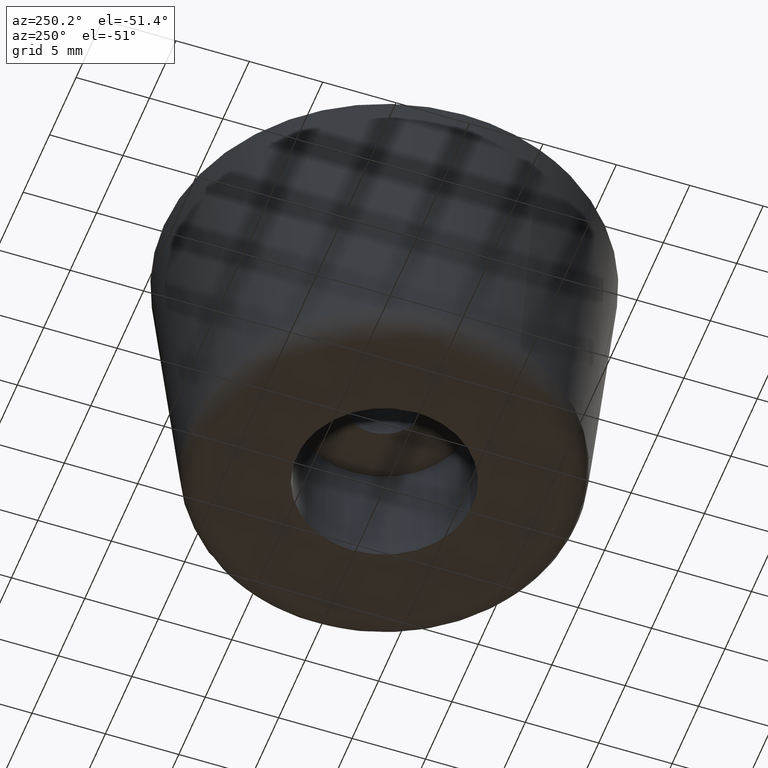
[diagram: clean part render]
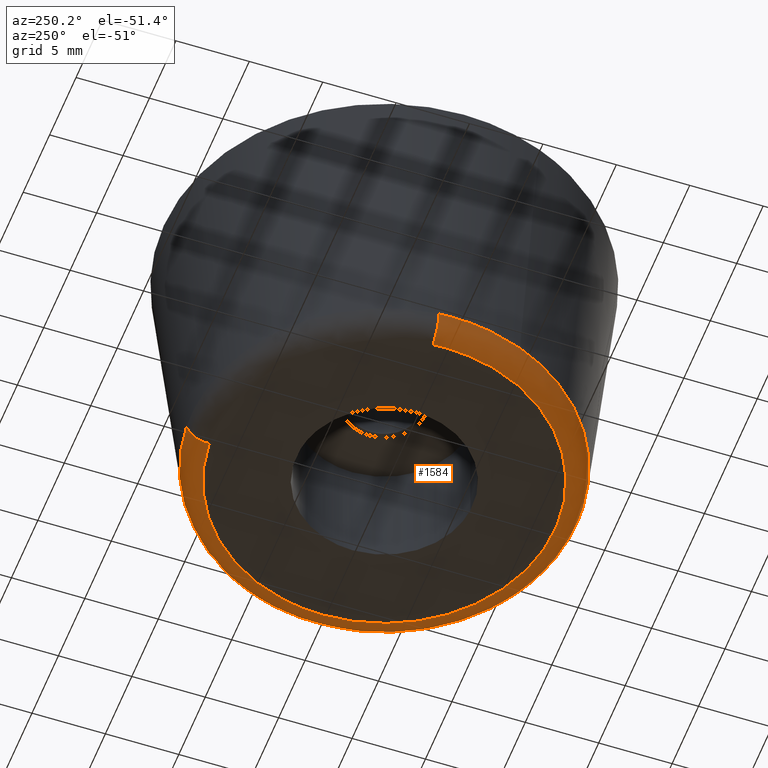
[diagram: same view with one face highlighted and labeled with its STEP entity id]
A machine part, auxiliary view. The second image highlights one B-rep face of the part: STEP entity #1584.
In plain terms, the highlighted face is a freeform B-spline surface patch.
Its self-contained STEP definition (entity closure, byte-faithful):
#705=CARTESIAN_POINT('',(1.030555621959290,-13.094583491800741,1.350742231963600));
#706=VERTEX_POINT('',#705);
#707=CARTESIAN_POINT('',(-12.213839723886680,-4.832419833118689,1.350742433918875));
#708=VERTEX_POINT('',#707);
#709=CARTESIAN_POINT('',(1.030555621959290,-13.094583491800739,1.350742231963600));
#710=CARTESIAN_POINT('',(0.516073231781699,-13.135073728872834,1.350742237333666));
#711=CARTESIAN_POINT('',(-7.493435E-009,-13.135073733965189,1.350742242998451));
#712=CARTESIAN_POINT('',(-8.928885143544781,-13.135073822070973,1.350742341008227));
#713=CARTESIAN_POINT('',(-12.213839723886680,-4.832419833118689,1.350742433918874));
#721=(BOUNDED_CURVE()B_SPLINE_CURVE(2,(#709,#710,#711,#712,#713),.UNSPECIFIED.,.F.,.U.)B_SPLINE_CURVE_WITH_KNOTS((3,2,3),(0.736331436581265,0.750000000000000,0.937532615029448),.UNSPECIFIED.)CURVE()GEOMETRIC_REPRESENTATION_ITEM()RATIONAL_B_SPLINE_CURVE((0.969723639886132,0.983986281854923,1.0,0.780291875006084,0.890203263798775))REPRESENTATION_ITEM(''));
#722=EDGE_CURVE('',#706,#708,#721,.T.);
#782=CARTESIAN_POINT('',(-13.135073999999980,0.0,1.350745000000000));
#783=VERTEX_POINT('',#782);
#784=CARTESIAN_POINT('',(-12.213839723886680,-4.832419833118689,1.350742433918874));
#785=CARTESIAN_POINT('',(-13.135073880694025,-2.504020181869384,1.350743716959438));
#786=CARTESIAN_POINT('',(-13.135073999999980,0.0,1.350745000000000));
#794=(BOUNDED_CURVE()B_SPLINE_CURVE(2,(#784,#785,#786),.UNSPECIFIED.,.F.,.U.)B_SPLINE_CURVE_WITH_KNOTS((3,3),(0.937532615029448,1.0),.UNSPECIFIED.)CURVE()GEOMETRIC_REPRESENTATION_ITEM()RATIONAL_B_SPLINE_CURVE((0.890203263798775,0.926814906180464,1.0))REPRESENTATION_ITEM(''));
#795=EDGE_CURVE('',#708,#783,#794,.T.);
#844=CARTESIAN_POINT('',(13.135073999999980,0.0,1.350745000000000));
#845=VERTEX_POINT('',#844);
#846=CARTESIAN_POINT('',(13.135073999999980,0.0,1.350745000000000));
#847=CARTESIAN_POINT('',(13.135073989141043,-12.141947033812311,1.350743615981800));
#848=CARTESIAN_POINT('',(1.030555621959290,-13.094583491800739,1.350742231963600));
#856=(BOUNDED_CURVE()B_SPLINE_CURVE(2,(#846,#847,#848),.UNSPECIFIED.,.F.,.U.)B_SPLINE_CURVE_WITH_KNOTS((3,3),(0.500000000000000,0.736331436581265),.UNSPECIFIED.)CURVE()GEOMETRIC_REPRESENTATION_ITEM()RATIONAL_B_SPLINE_CURVE((1.0,0.723120499331624,0.969723639886132))REPRESENTATION_ITEM(''));
#857=EDGE_CURVE('',#845,#706,#856,.T.);
#859=CARTESIAN_POINT('',(0.989423196236340,13.097756360902920,1.350744958231219));
#860=VERTEX_POINT('',#859);
#861=CARTESIAN_POINT('',(0.989423196236340,13.097756360902922,1.350744958231218));
#862=CARTESIAN_POINT('',(13.135073999999980,12.180256157799978,1.350745000000000));
#863=CARTESIAN_POINT('',(13.135073999999980,0.0,1.350745000000000));
#871=(BOUNDED_CURVE()B_SPLINE_CURVE(2,(#861,#862,#863),.UNSPECIFIED.,.F.,.U.)B_SPLINE_CURVE_WITH_KNOTS((3,3),(0.263129840737689,0.500000000000000),.UNSPECIFIED.)CURVE()GEOMETRIC_REPRESENTATION_ITEM()RATIONAL_B_SPLINE_CURVE((0.970850634527140,0.722489346451227,1.0))REPRESENTATION_ITEM(''));
#872=EDGE_CURVE('',#860,#845,#871,.T.);
#874=CARTESIAN_POINT('',(-13.097756360903629,0.989423196243246,1.350744958243485));
#875=VERTEX_POINT('',#874);
#891=CARTESIAN_POINT('',(-13.135073999999980,0.0,1.350745000000000));
#892=CARTESIAN_POINT('',(-13.135073999999978,0.495415344607953,1.350745000000001));
#893=CARTESIAN_POINT('',(-13.097756360903636,0.989423196243246,1.350744958243485));
#901=(BOUNDED_CURVE()B_SPLINE_CURVE(2,(#891,#892,#893),.UNSPECIFIED.,.F.,.U.)B_SPLINE_CURVE_WITH_KNOTS((3,3),(0.0,0.013129840737868),.UNSPECIFIED.)CURVE()GEOMETRIC_REPRESENTATION_ITEM()RATIONAL_B_SPLINE_CURVE((1.0,0.984617434735112,0.970850634526766))REPRESENTATION_ITEM(''));
#902=EDGE_CURVE('',#783,#875,#901,.T.);
#1473=CARTESIAN_POINT('',(0.989921109811301,13.104347626133709,1.449970846079858));
#1474=CARTESIAN_POINT('',(14.094268735945009,12.114426516322411,1.449970846079858));
#1475=CARTESIAN_POINT('',(13.104347626133709,-0.989921109811300,1.449970846079858));
#1476=CARTESIAN_POINT('',(12.114426516322411,-14.094268735945008,1.449970846079858));
#1477=CARTESIAN_POINT('',(-0.989921109811300,-13.104347626133709,1.449970846079858));
#1478=CARTESIAN_POINT('',(-14.094268735945008,-12.114426516322419,1.449970846079858));
#1479=CARTESIAN_POINT('',(-13.104347626133709,0.989921109811304,1.449970846079858));
#1480=CARTESIAN_POINT('',(0.986027509868629,13.052805046972439,-0.098946298262863));
#1481=CARTESIAN_POINT('',(14.038832556841070,12.066777537103812,-0.098946298262863));
#1482=CARTESIAN_POINT('',(13.052805046972439,-0.986027509868629,-0.098946298262863));
#1483=CARTESIAN_POINT('',(12.066777537103812,-14.038832556841067,-0.098946298262863));
#1484=CARTESIAN_POINT('',(-0.986027509868628,-13.052805046972439,-0.098946298262863));
#1485=CARTESIAN_POINT('',(-14.038832556841063,-12.066777537103818,-0.098946298262863));
#1486=CARTESIAN_POINT('',(-13.052805046972439,0.986027509868633,-0.098946298262863));
#1487=CARTESIAN_POINT('',(0.869541752280144,11.510793420183274,0.003265876902326));
#1488=CARTESIAN_POINT('',(12.380335172463425,10.641251667903138,0.003265876902326));
#1489=CARTESIAN_POINT('',(11.510793420183274,-0.869541752280144,0.003265876902326));
#1490=CARTESIAN_POINT('',(10.641251667903138,-12.380335172463425,0.003265876902326));
#1491=CARTESIAN_POINT('',(-0.869541752280143,-11.510793420183274,0.003265876902326));
#1492=CARTESIAN_POINT('',(-12.380335172463420,-10.641251667903143,0.003265876902326));
#1493=CARTESIAN_POINT('',(-11.510793420183274,0.869541752280147,0.003265876902326));
#1501=(BOUNDED_SURFACE()B_SPLINE_SURFACE(2,2,((#1473,#1480,#1487),(#1474,#1481,#1488),(#1475,#1482,#1489),(#1476,#1483,#1490),(#1477,#1484,#1491),(#1478,#1485,#1492),(#1479,#1486,#1493)),.UNSPECIFIED.,.F.,.F.,.U.)B_SPLINE_SURFACE_WITH_KNOTS((3,2,2,3),(3,3),(0.0,21.773855747073469,43.547711494146931,65.321567241220393),(0.0,2.542835993604339),.UNSPECIFIED.)GEOMETRIC_REPRESENTATION_ITEM()RATIONAL_B_SPLINE_SURFACE(((0.912663329619786,0.636266793014406,0.917081506130559),(0.645350429314444,0.449908563984304,0.648474551885690),(0.912663329619786,0.636266793014406,0.917081506130559),(0.645350429314444,0.449908563984304,0.648474551885690),(0.912663329619786,0.636266793014406,0.917081506130559),(0.645350429314444,0.449908563984304,0.648474551885690),(0.912663329619786,0.636266793014406,0.917081506130559)))REPRESENTATION_ITEM('')SURFACE());
#1502=CARTESIAN_POINT('',(0.876993764689428,11.609441443112891,-9.937312E-014));
#1503=VERTEX_POINT('',#1502);
#1504=CARTESIAN_POINT('',(11.642519000000000,0.0,0.0));
#1505=VERTEX_POINT('',#1504);
#1506=CARTESIAN_POINT('',(0.876993764689428,11.609441443112884,-9.937312E-014));
#1507=CARTESIAN_POINT('',(11.642519000000000,10.796198311530009,-9.224485E-014));
#1508=CARTESIAN_POINT('',(11.642519000000000,0.0,0.0));
#1516=(BOUNDED_CURVE()B_SPLINE_CURVE(2,(#1506,#1507,#1508),.UNSPECIFIED.,.F.,.U.)B_SPLINE_CURVE_WITH_KNOTS((3,3),(0.263129840739417,0.500000000000000),.UNSPECIFIED.)CURVE()GEOMETRIC_REPRESENTATION_ITEM()RATIONAL_B_SPLINE_CURVE((0.970850634523517,0.722489346453251,1.0))REPRESENTATION_ITEM(''));
#1517=EDGE_CURVE('',#1503,#1505,#1516,.T.);
#1518=ORIENTED_EDGE('',*,*,#1517,.F.);
#1519=CARTESIAN_POINT('',(0.989423196236340,13.097756360902920,1.350744958231219));
#1520=CARTESIAN_POINT('',(0.979248531805115,12.963066496886189,1.477586E-009));
#1521=CARTESIAN_POINT('',(0.876993764689428,11.609441443112885,-9.937312E-014));
#1529=(BOUNDED_CURVE()B_SPLINE_CURVE(2,(#1519,#1520,#1521),.UNSPECIFIED.,.F.,.U.)B_SPLINE_CURVE_WITH_KNOTS((3,3),(-1.710024344260570,-0.277482477633152),.UNSPECIFIED.)CURVE()GEOMETRIC_REPRESENTATION_ITEM()RATIONAL_B_SPLINE_CURVE((0.888708382971118,0.660422433206934,0.892725170638497))REPRESENTATION_ITEM(''));
#1530=EDGE_CURVE('',#860,#1503,#1529,.T.);
#1531=ORIENTED_EDGE('',*,*,#1530,.F.);
#1532=ORIENTED_EDGE('',*,*,#872,.T.);
#1533=ORIENTED_EDGE('',*,*,#857,.T.);
#1534=ORIENTED_EDGE('',*,*,#722,.T.);
#1535=ORIENTED_EDGE('',*,*,#795,.T.);
#1536=ORIENTED_EDGE('',*,*,#902,.T.);
#1537=CARTESIAN_POINT('',(-11.609441442593070,0.876993764607335,-9.951443E-014));
#1538=VERTEX_POINT('',#1537);
#1539=CARTESIAN_POINT('',(-13.097756360903629,0.989423196243246,1.350744958243486));
#1540=CARTESIAN_POINT('',(-12.963066496813882,0.979248531799653,5.282153E-010));
#1541=CARTESIAN_POINT('',(-11.609441442593074,0.876993764607335,-9.951443E-014));
#1549=(BOUNDED_CURVE()B_SPLINE_CURVE(2,(#1539,#1540,#1541),.UNSPECIFIED.,.F.,.U.)B_SPLINE_CURVE_WITH_KNOTS((3,3),(-1.710024344278077,-0.277482476884927),.UNSPECIFIED.)CURVE()GEOMETRIC_REPRESENTATION_ITEM()RATIONAL_B_SPLINE_CURVE((0.888708382976698,0.660422433084860,0.892725170881163))REPRESENTATION_ITEM(''));
#1550=EDGE_CURVE('',#875,#1538,#1549,.T.);
#1551=ORIENTED_EDGE('',*,*,#1550,.T.);
#1552=CARTESIAN_POINT('',(-11.642519000000000,0.0,-9.947598E-014));
#1553=VERTEX_POINT('',#1552);
#1554=CARTESIAN_POINT('',(-11.642519000000000,0.0,-9.947598E-014));
#1555=CARTESIAN_POINT('',(-11.642519000000002,0.439120675119084,-9.947598E-014));
#1556=CARTESIAN_POINT('',(-11.609441442593070,0.876993764607335,-9.951443E-014));
#1564=(BOUNDED_CURVE()B_SPLINE_CURVE(2,(#1554,#1555,#1556),.UNSPECIFIED.,.F.,.U.)B_SPLINE_CURVE_WITH_KNOTS((3,3),(0.0,0.013129840738158),.UNSPECIFIED.)CURVE()GEOMETRIC_REPRESENTATION_ITEM()RATIONAL_B_SPLINE_CURVE((1.0,0.984617434734772,0.970850634526157))REPRESENTATION_ITEM(''));
#1565=EDGE_CURVE('',#1553,#1538,#1564,.T.);
#1566=ORIENTED_EDGE('',*,*,#1565,.F.);
#1567=CARTESIAN_POINT('',(11.642519000000000,0.0,0.0));
#1568=CARTESIAN_POINT('',(11.642518999999998,-11.642518999999998,-9.947598E-014));
#1569=CARTESIAN_POINT('',(0.0,-11.642519000000000,-9.947598E-014));
#1570=CARTESIAN_POINT('',(-11.642518999999998,-11.642518999999998,-9.947598E-014));
#1571=CARTESIAN_POINT('',(-11.642519000000000,0.0,-9.947598E-014));
#1579=(BOUNDED_CURVE()B_SPLINE_CURVE(2,(#1567,#1568,#1569,#1570,#1571),.UNSPECIFIED.,.F.,.U.)B_SPLINE_CURVE_WITH_KNOTS((3,2,3),(0.500000000000000,0.750000000000000,1.0),.UNSPECIFIED.)CURVE()GEOMETRIC_REPRESENTATION_ITEM()RATIONAL_B_SPLINE_CURVE((1.0,0.707106781186547,1.0,0.707106781186547,1.0))REPRESENTATION_ITEM(''));
#1580=EDGE_CURVE('',#1505,#1553,#1579,.T.);
#1581=ORIENTED_EDGE('',*,*,#1580,.F.);
#1582=EDGE_LOOP('',(#1518,#1531,#1532,#1533,#1534,#1535,#1536,#1551,#1566,#1581));
#1583=FACE_OUTER_BOUND('',#1582,.T.);
#1584=ADVANCED_FACE('',(#1583),#1501,.T.);